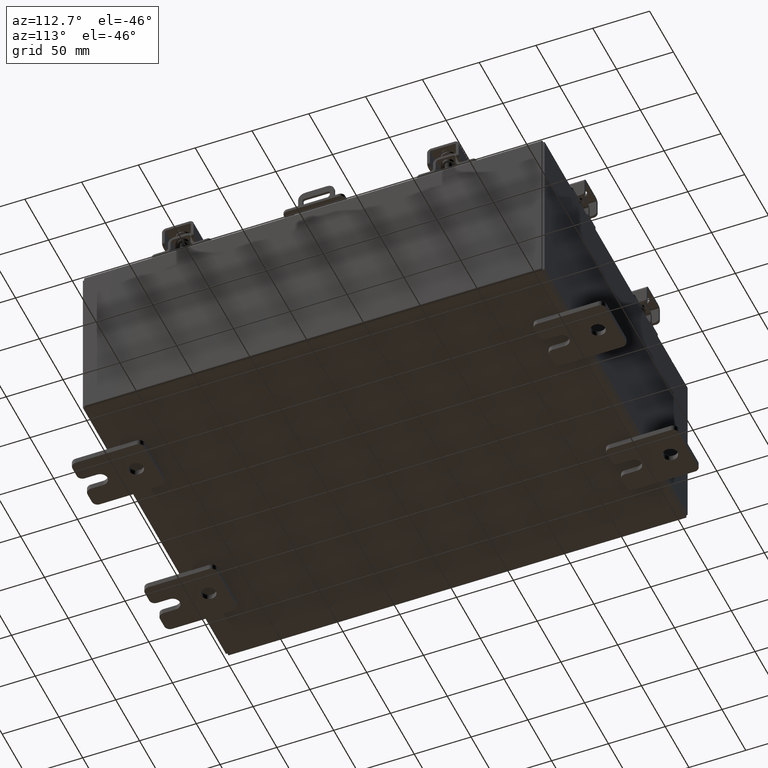
[diagram: clean part render]
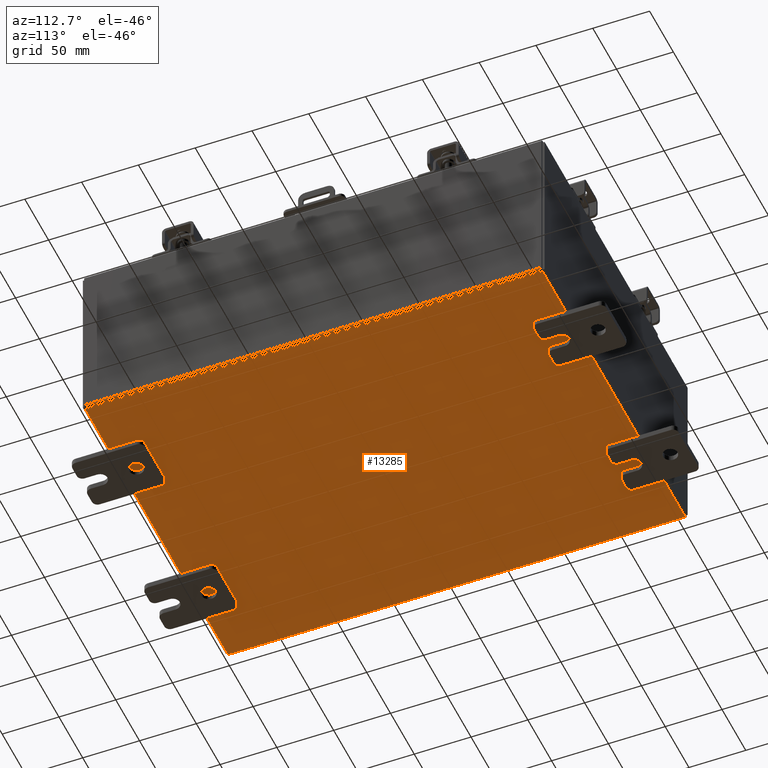
[diagram: same view with one face highlighted and labeled with its STEP entity id]
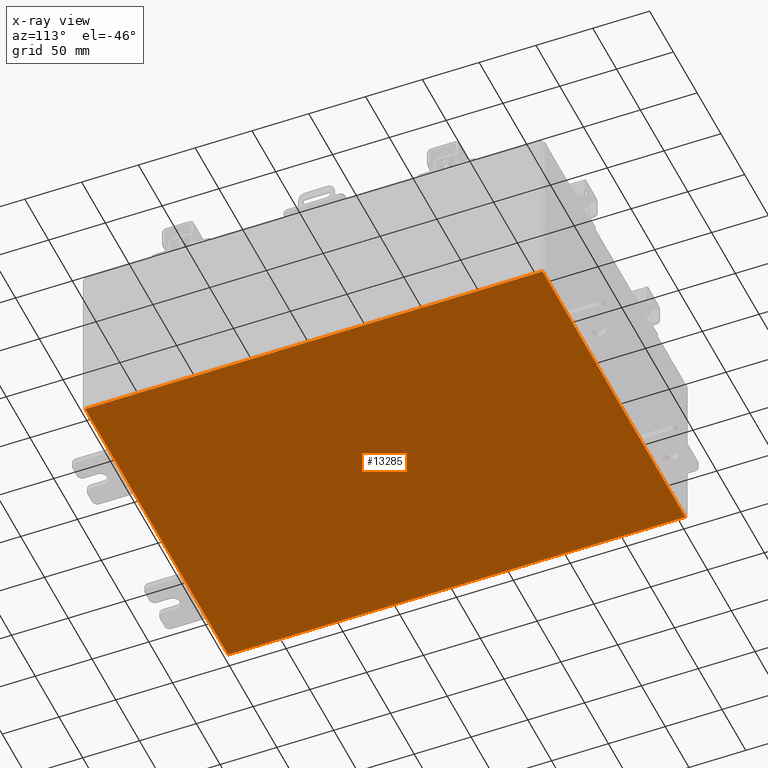
[diagram: x-ray of the same camera — body ghosted, the highlighted face saturated]
A machine part, auxiliary view. The second image highlights one B-rep face of the part: STEP entity #13285.
The next image is the same camera in x-ray: the body ghosted, the highlighted face saturated — about 0% of this face is hidden behind the body in this view.
In plain terms, the highlighted planar face has unit normal (0, 0, -1).
Its self-contained STEP definition (entity closure, byte-faithful):
#835 = EDGE_CURVE ( 'NONE', #1788, #3229, #3505, .T. ) ;
#951 = EDGE_CURVE ( 'NONE', #1788, #4333, #6321, .T. ) ;
#1682 = DIRECTION ( 'NONE',  ( 1.000000000000000000, 0.0000000000000000000, 0.0000000000000000000 ) ) ;
#1788 = VERTEX_POINT ( 'NONE', #16280 ) ;
#1978 = CARTESIAN_POINT ( 'NONE',  ( 5.912299999999999200, 7.925300000000000000, -0.07469999999999996100 ) ) ;
#3133 = DIRECTION ( 'NONE',  ( -1.000000000000000000, 0.0000000000000000000, -0.0000000000000000000 ) ) ;
#3190 = CARTESIAN_POINT ( 'NONE',  ( -6.000000000000001800, -7.925300000000000900, -0.07469999999999998900 ) ) ;
#3229 = VERTEX_POINT ( 'NONE', #9293 ) ;
#3275 = DIRECTION ( 'NONE',  ( 0.0000000000000000000, 0.0000000000000000000, -1.000000000000000000 ) ) ;
#3446 = CARTESIAN_POINT ( 'NONE',  ( 0.0000000000000000000, 0.0000000000000000000, -0.07469999999999998900 ) ) ;
#3505 = LINE ( 'NONE', #3190, #20028 ) ;
#3716 = PLANE ( 'NONE',  #13165 ) ;
#4009 = CARTESIAN_POINT ( 'NONE',  ( -5.912300000000001000, -7.925300000000000900, -0.07469999999999876700 ) ) ;
#4026 = DIRECTION ( 'NONE',  ( -0.0000000000000000000, 1.000000000000000000, -8.208677865577646300E-017 ) ) ;
#4333 = VERTEX_POINT ( 'NONE', #16020 ) ;
#6321 = LINE ( 'NONE', #4009, #10560 ) ;
#6698 = VECTOR ( 'NONE', #16318, 39.37007874015748100 ) ;
#7515 = LINE ( 'NONE', #1978, #11225 ) ;
#9293 = CARTESIAN_POINT ( 'NONE',  ( 5.912299999999994800, -7.925300000000000900, -0.07469999999999998900 ) ) ;
#9541 = EDGE_CURVE ( 'NONE', #13531, #4333, #15129, .T. ) ;
#10508 = ORIENTED_EDGE ( 'NONE', *, *, #11003, .T. ) ;
#10560 = VECTOR ( 'NONE', #4026, 39.37007874015748100 ) ;
#11003 = EDGE_CURVE ( 'NONE', #13531, #3229, #7515, .T. ) ;
#11225 = VECTOR ( 'NONE', #18273, 39.37007874015748100 ) ;
#13165 = AXIS2_PLACEMENT_3D ( 'NONE', #3446, #3275, #3133 ) ;
#13285 = ADVANCED_FACE ( 'NONE', ( #13391 ), #3716, .T. ) ;
#13391 = FACE_OUTER_BOUND ( 'NONE', #19930, .T. ) ;
#13453 = CARTESIAN_POINT ( 'NONE',  ( -6.000000000000001800, 7.925299999999998200, -0.07469999999999998900 ) ) ;
#13531 = VERTEX_POINT ( 'NONE', #18689 ) ;
#15129 = LINE ( 'NONE', #13453, #6698 ) ;
#16020 = CARTESIAN_POINT ( 'NONE',  ( -5.912300000000001000, 7.925299999999998200, -0.07469999999999998900 ) ) ;
#16280 = CARTESIAN_POINT ( 'NONE',  ( -5.912300000000001000, -7.925300000000000900, -0.07469999999999876700 ) ) ;
#16318 = DIRECTION ( 'NONE',  ( -1.000000000000000000, -0.0000000000000000000, -0.0000000000000000000 ) ) ;
#16925 = ORIENTED_EDGE ( 'NONE', *, *, #835, .F. ) ;
#18273 = DIRECTION ( 'NONE',  ( -0.0000000000000000000, -1.000000000000000000, -0.0000000000000000000 ) ) ;
#18689 = CARTESIAN_POINT ( 'NONE',  ( 5.912299999999999200, 7.925300000000000000, -0.07469999999999996100 ) ) ;
#19281 = ORIENTED_EDGE ( 'NONE', *, *, #9541, .F. ) ;
#19930 = EDGE_LOOP ( 'NONE', ( #16925, #20079, #19281, #10508 ) ) ;
#20028 = VECTOR ( 'NONE', #1682, 39.37007874015748100 ) ;
#20079 = ORIENTED_EDGE ( 'NONE', *, *, #951, .T. ) ;